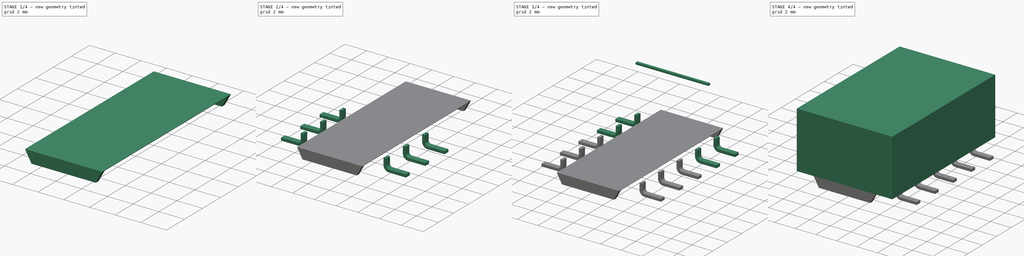
[diagram: build sequence overview — one tinted view per stage of 4, left to right]
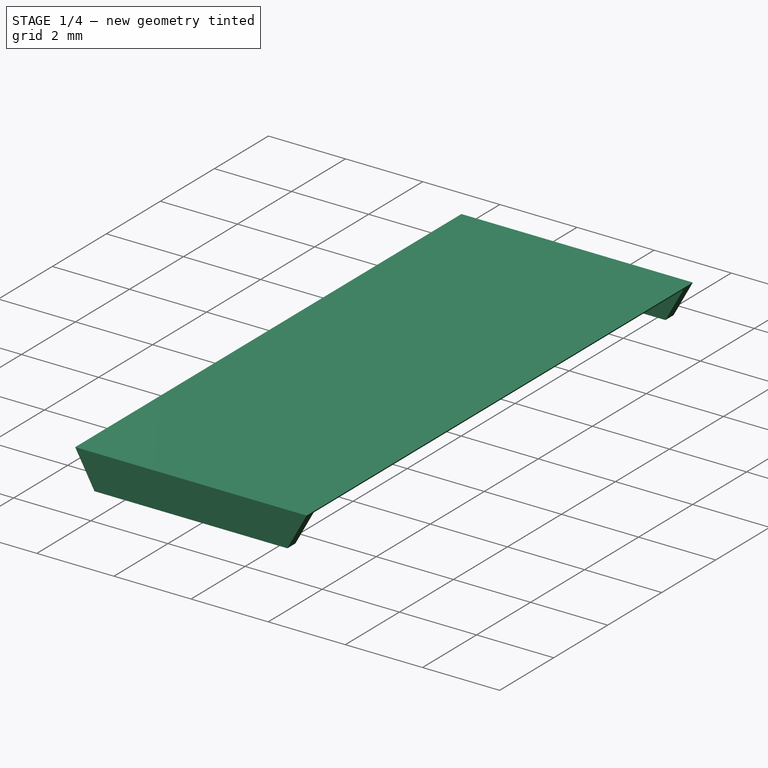
[diagram: stage 1 of 4 — iso view after this stage's code; geometry added in this stage tinted green]
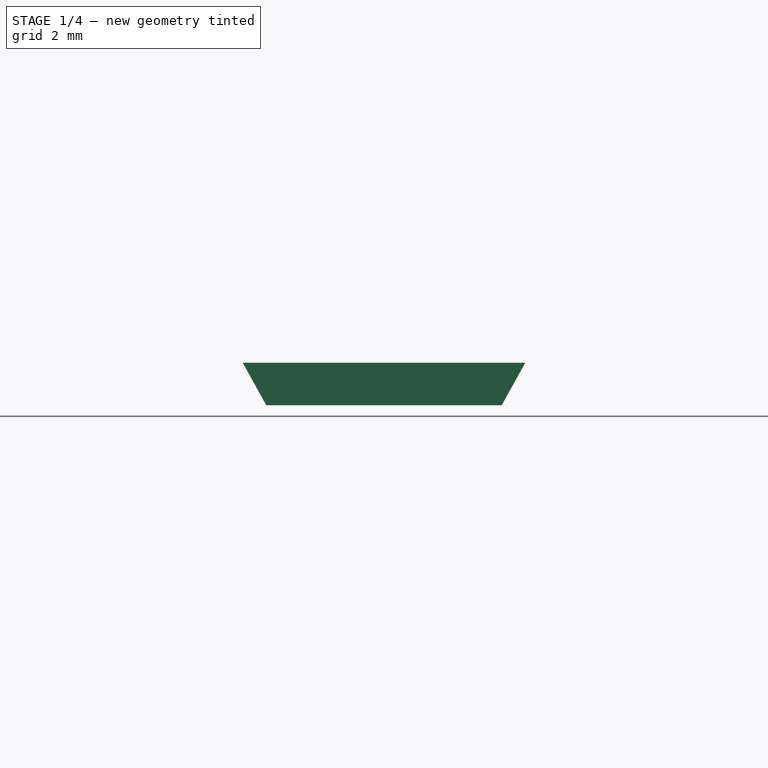
[diagram: stage 1 of 4 — front view after this stage's code; geometry added in this stage tinted green]
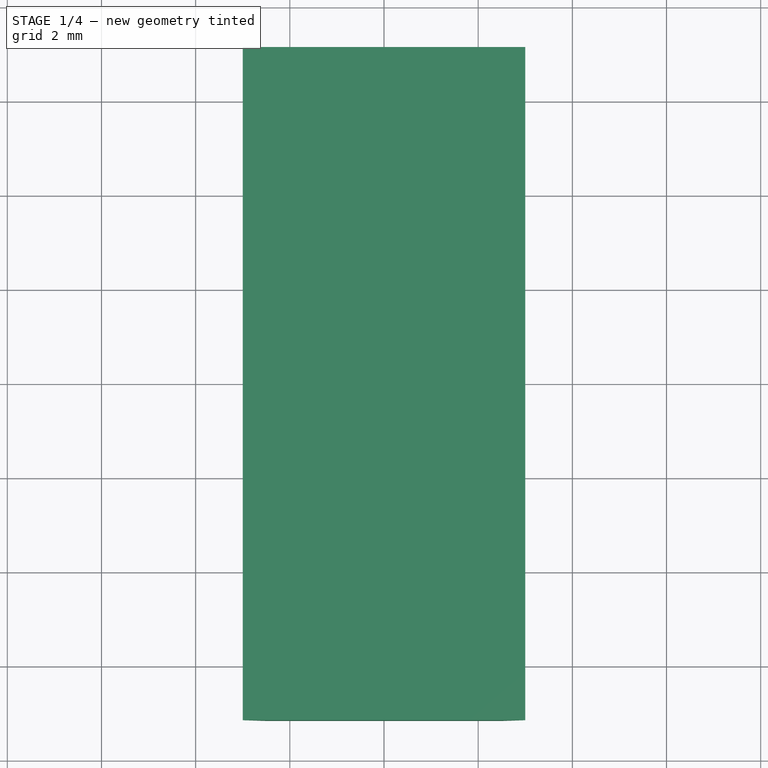
[diagram: stage 1 of 4 — top view after this stage's code; geometry added in this stage tinted green]
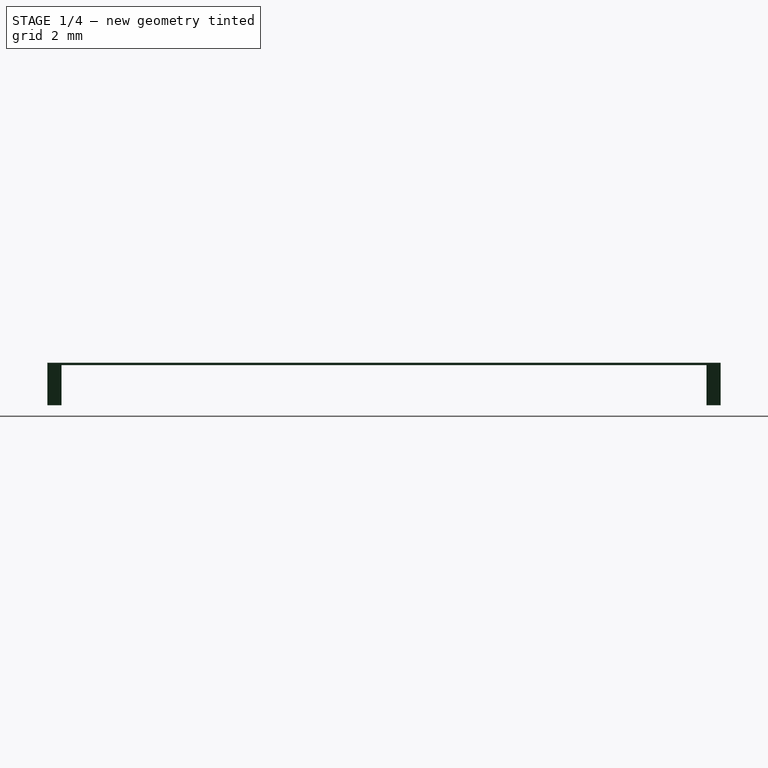
[diagram: stage 1 of 4 — right view after this stage's code; geometry added in this stage tinted green]
FCSTD DOCUMENT  (FreeCAD 0.16R6712 (Git))
Label: Relay_DPDT_Omron_G6H-2F
License: All rights reserved
LicenseURL: http://en.wikipedia.org/wiki/All_rights_reserved
objects: Sketcher::SketchObject×9, PartDesign::Pad×8, Part::Feature×3, App::DocumentObjectGroup×1, PartDesign::Pocket×1, Part::MultiFuse×1
note: 31 computed .brp shape members not serialized (recipe doc carries the construction recipe); baked Part::Feature solids carry a one-line shape summary decoded from their .brp

FEATURE [Sketcher::SketchObject] Sketch009
  Placement = pos=(-3.81,-7.15,0.9) rot=(1,0,0;1.5708rad)
  sketch-geometry (6):
    g0: LineSegment StartX=0.81 StartY=0 StartZ=0 EndX=1.31 EndY=-0.9 EndZ=0
    g1: LineSegment StartX=1.31 StartY=-0.9 StartZ=0 EndX=6.31 EndY=-0.9 EndZ=0
    g2: LineSegment StartX=6.31 StartY=-0.9 StartZ=0 EndX=6.81 EndY=0 EndZ=0
    g3: LineSegment StartX=6.81 StartY=0 StartZ=0 EndX=0.81 EndY=0 EndZ=0
    g4: GeomPoint [constr] X=3.81 Y=0 Z=0
    g5: LineSegment [constr] StartX=3.81 StartY=0 StartZ=0 EndX=3.81 EndY=-0.9 EndZ=0
  constraints (4):
    c: Coincident(g0,g1)
    c: Coincident(g0,g3)
    c: Coincident(g1,g2)
    c: Coincident(g2,g3)
FEATURE [PartDesign::Pad] Pad007
  Length = 14.3
  Length2 = 100
  Placement = pos=(-3.81,-7.15,0.9) rot=(1,0,0;1.5708rad)
  Reversed = true
  Sketch = -> Sketch009
  Type = 0
FEATURE [Part::Feature] FusionAxisZ1  label="Z"
  shape: bbox 0.8 x 0.8 x 14 mm, 8 faces (baked)
FEATURE [Part::Feature] FusionAxisY1  label="Y"
  Placement = pos=(0,0,0.05) rot=(-1,0,0;1.5708rad)
  shape: bbox 0.8 x 14 x 0.8 mm, 8 faces (baked)
FEATURE [Part::Feature] FusionAxisX1  label="X"
  Placement = pos=(0,-0.05,0) rot=(0,1,0;1.5708rad)
  shape: bbox 14 x 0.8 x 0.8 mm, 8 faces (baked)
FEATURE [App::DocumentObjectGroup] axis
  Group = -> [FusionAxisZ1,FusionAxisY1,FusionAxisX1]
FEATURE [Sketcher::SketchObject] Sketch010
  ExternalGeometry = -> [Pad007]
  Placement = pos=(-3.81,-7.15,0) rot=(1,0,0;3.14159rad)
  Support = -> Pad007 [Face2]
  sketch-geometry (4):
    g0: LineSegment StartX=0.81 StartY=-0.3 StartZ=0 EndX=6.81 EndY=-0.3 EndZ=0
    g1: LineSegment StartX=6.81 StartY=-0.3 StartZ=0 EndX=6.81 EndY=-14 EndZ=0
    g2: LineSegment StartX=6.81 StartY=-14 StartZ=0 EndX=0.81 EndY=-14 EndZ=0
    g3: LineSegment StartX=0.81 StartY=-14 StartZ=0 EndX=0.81 EndY=-0.3 EndZ=0
  constraints (12):
    c: Coincident(g0,g1)
    c: Coincident(g1,g2)
    c: Coincident(g2,g3)
    c: Coincident(g3,g0)
    c: Horizontal(g0)
    c: Horizontal(g2)
    c: Vertical(g1)
    c: Vertical(g3)
    c: DistanceX(g0,g-3) = 0.5
    c: DistanceX(g-4,g0) = 0.5
    c: DistanceY(g0,g-3) = 0.3
    c: DistanceY(g-3,g2) = 0.3
FEATURE [PartDesign::Pocket] Pocket
  Length = 0.85
  Placement = pos=(-3.81,-7.15,0.9) rot=(1,0,0;1.5708rad)
  Sketch = -> Sketch010
  Type = 0
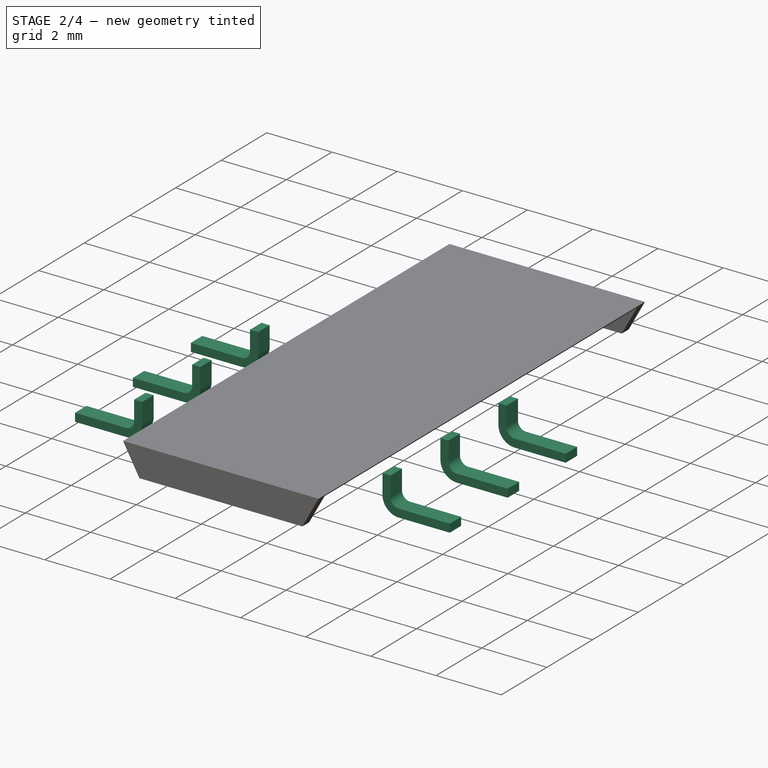
[diagram: stage 2 of 4 — iso view after this stage's code; geometry added in this stage tinted green]
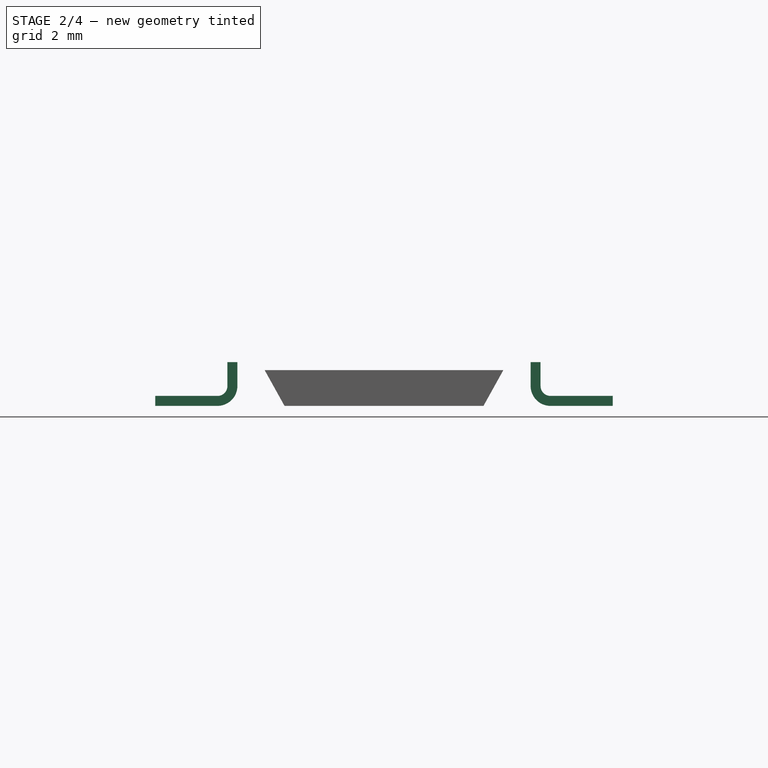
[diagram: stage 2 of 4 — front view after this stage's code; geometry added in this stage tinted green]
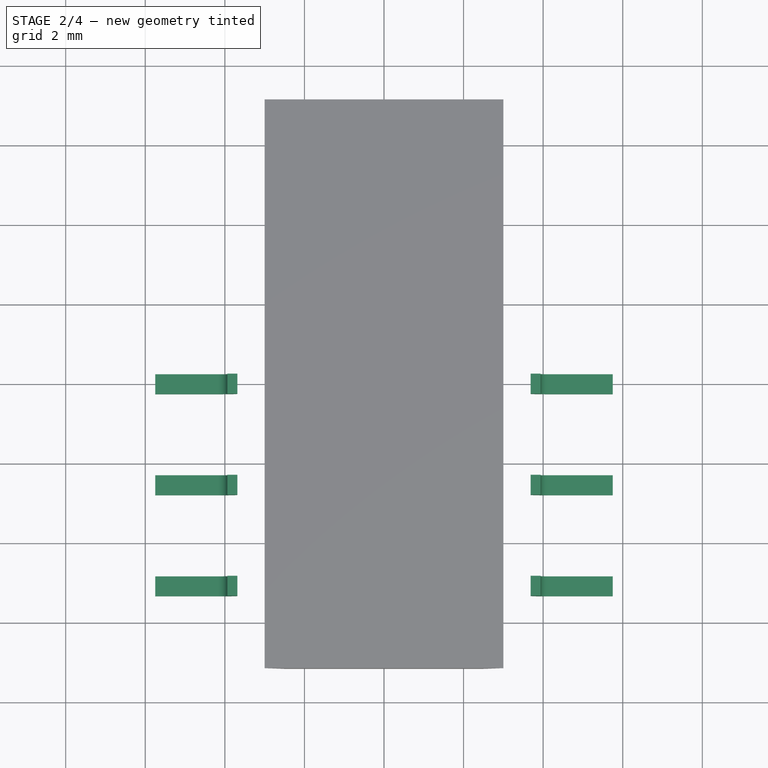
[diagram: stage 2 of 4 — top view after this stage's code; geometry added in this stage tinted green]
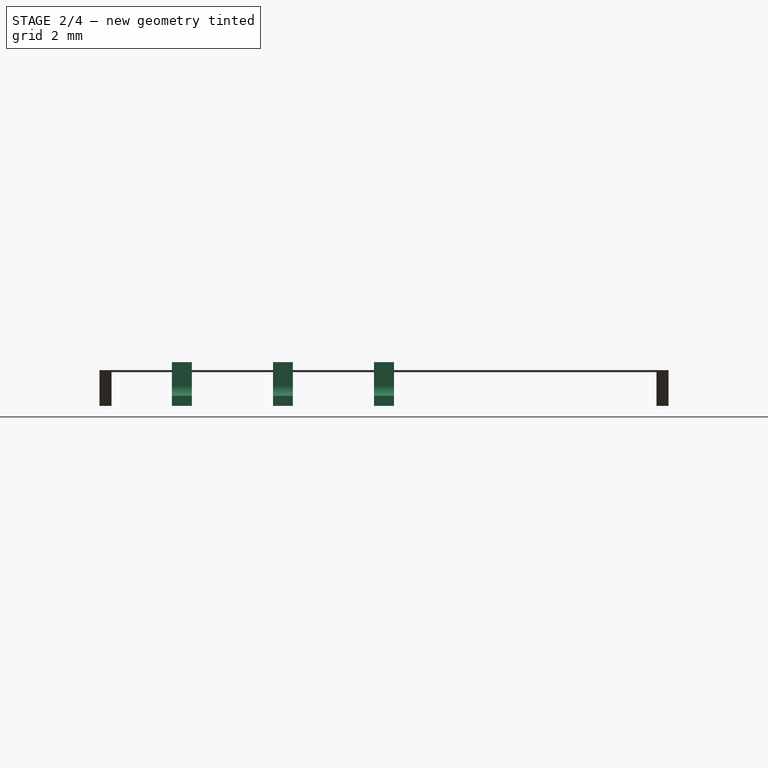
[diagram: stage 2 of 4 — right view after this stage's code; geometry added in this stage tinted green]
FEATURE [Sketcher::SketchObject] Sketch006
  Placement = pos=(-3.81,0,0) rot=(1,0,0;1.5708rad)
  expr: Constraints[26] = 6.2 - 5.1
  sketch-geometry (20):
    g0: LineSegment StartX=-1.94 StartY=0 StartZ=0 EndX=-0.375 EndY=0 EndZ=0
    g1: LineSegment StartX=-0.375 StartY=0.25 StartZ=0 EndX=-1.94 EndY=0.25 EndZ=0
    g2: LineSegment StartX=-1.94 StartY=0.25 StartZ=0 EndX=-1.94 EndY=0 EndZ=0
    g3: LineSegment StartX=-0.125 StartY=1.1 StartZ=0 EndX=0.125 EndY=1.1 EndZ=0
    g4: LineSegment StartX=0.125 StartY=1.1 StartZ=0 EndX=0.125 EndY=0.5 EndZ=0
    g5: LineSegment StartX=-0.125 StartY=0.5 StartZ=0 EndX=-0.125 EndY=1.1 EndZ=0
    g6: GeomPoint [constr] X=0 Y=1.1 Z=0
    g7: ArcOfCircle CenterX=-0.375 CenterY=0.5 CenterZ=0 NormalX=0 NormalY=0 NormalZ=1 Radius=0.25 StartAngle=4.71239 EndAngle=6.28319
    g8: LineSegment [constr] StartX=-0.375 StartY=0.25 StartZ=0 EndX=-0.375 EndY=0.5 EndZ=0
    g9: ArcOfCircle CenterX=-0.375 CenterY=0.5 CenterZ=0 NormalX=0 NormalY=0 NormalZ=1 Radius=0.5 StartAngle=4.71239 EndAngle=6.28319
    g10: LineSegment StartX=7.99961 StartY=0 StartZ=0 EndX=9.56 EndY=0 EndZ=0
    g11: LineSegment StartX=9.56 StartY=0 StartZ=0 EndX=9.56 EndY=0.25 EndZ=0
    g12: LineSegment StartX=9.56 StartY=0.25 StartZ=0 EndX=7.995 EndY=0.25 EndZ=0
    g13: LineSegment StartX=7.495 StartY=1.1 StartZ=0 EndX=7.745 EndY=1.1 EndZ=0
    g14: LineSegment StartX=7.745 StartY=1.1 StartZ=0 EndX=7.745 EndY=0.5 EndZ=0
    g15: LineSegment StartX=7.495 StartY=0.495385 StartZ=0 EndX=7.495 EndY=1.1 EndZ=0
    g16: LineSegment [constr] StartX=7.995 StartY=0.25 StartZ=0 EndX=7.995 EndY=0.5 EndZ=0
    g17: ArcOfCircle CenterX=7.995 CenterY=0.5 CenterZ=0 NormalX=0 NormalY=0 NormalZ=1 Radius=0.25 StartAngle=3.14159 EndAngle=4.71239
    g18: ArcOfCircle CenterX=7.995 CenterY=0.5 CenterZ=0 NormalX=0 NormalY=0 NormalZ=1 Radius=0.500021 StartAngle=3.15082 EndAngle=4.72162
    g19: LineSegment [constr] StartX=7.745 StartY=0.5 StartZ=0 EndX=7.995 EndY=0.5 EndZ=0
  constraints (56):
    c: Coincident(g1,g2)
    c: Coincident(g2,g0)
    c: Horizontal(g0)
    c: Horizontal(g1)
    c: Vertical(g2)
    c: PointOnObject(g0,g-1)
    c: Coincident(g3,g4)
    c: Coincident(g5,g3)
    c: Horizontal(g3)
    c: Vertical(g4)
    c: Vertical(g5)
    c: PointOnObject(g6,g3)
    c: PointOnObject(g6,g-2)
    c: Symmetric(g3,g3,g6)
    c: DistanceX(g3,g3) = 0.25
    c: Equal(g2,g3)
    c: Coincident(g7,g1)
    c: Coincident(g7,g5)
    c: Coincident(g8,g1)
    c: Coincident(g8,g7)
    c: Vertical(g8)
    c: Radius(g7) = 0.25
    c: Coincident(g9,g7)
    c: Coincident(g9,g4)
    c: Coincident(g9,g0)
    c: Equal(g4,g5)
    c: DistanceY(g-1,g3) = 1.1
    c: Coincident(g10,g11)
    c: Coincident(g11,g12)
    c: Horizontal(g10)
    c: Horizontal(g12)
    c: Vertical(g11)
    c: PointOnObject(g10,g-1)
    c: Equal(g2,g11)
    c: Coincident(g13,g14)
    c: Coincident(g15,g13)
    c: Horizontal(g13)
    c: Vertical(g14)
    c: Vertical(g15)
    c: Equal(g13,g11)
    c: Coincident(g16,g12)
    c: Vertical(g16)
    c: Coincident(g17,g16)
    c: Coincident(g17,g12)
    c: Coincident(g17,g14)
    c: Coincident(g18,g16)
    c: Coincident(g18,g10)
    c: Coincident(g18,g15)
    c: Equal(g17,g7)
    c: DistanceX(g3,g13) = 7.62
    c: DistanceX(g0,g10) = 11.5
    c: Equal(g12,g1)
    c: Coincident(g19,g14)
    c: Coincident(g19,g16)
    c: Horizontal(g19)
    c: DistanceY(g3,g13) = 0
FEATURE [PartDesign::Pad] Pad004
  Length = 0.5
  Length2 = 100
  Midplane = true
  Placement = pos=(-3.81,0,0) rot=(1,0,0;1.5708rad)
  Sketch = -> Sketch006
  Type = 0
FEATURE [Sketcher::SketchObject] Sketch007
  Placement = pos=(-3.81,-2.54,0) rot=(1,0,0;1.5708rad)
  expr: Constraints[26] = 6.2 - 5.1
  sketch-geometry (20):
    g0: LineSegment StartX=-1.94 StartY=0 StartZ=0 EndX=-0.375 EndY=0 EndZ=0
    g1: LineSegment StartX=-0.375 StartY=0.25 StartZ=0 EndX=-1.94 EndY=0.25 EndZ=0
    g2: LineSegment StartX=-1.94 StartY=0.25 StartZ=0 EndX=-1.94 EndY=0 EndZ=0
    g3: LineSegment StartX=-0.125 StartY=1.1 StartZ=0 EndX=0.125 EndY=1.1 EndZ=0
    g4: LineSegment StartX=0.125 StartY=1.1 StartZ=0 EndX=0.125 EndY=0.5 EndZ=0
    g5: LineSegment StartX=-0.125 StartY=0.5 StartZ=0 EndX=-0.125 EndY=1.1 EndZ=0
    g6: GeomPoint [constr] X=0 Y=1.1 Z=0
    g7: ArcOfCircle CenterX=-0.375 CenterY=0.5 CenterZ=0 NormalX=0 NormalY=0 NormalZ=1 Radius=0.25 StartAngle=4.71239 EndAngle=6.28319
    g8: LineSegment [constr] StartX=-0.375 StartY=0.25 StartZ=0 EndX=-0.375 EndY=0.5 EndZ=0
    g9: ArcOfCircle CenterX=-0.375 CenterY=0.5 CenterZ=0 NormalX=0 NormalY=0 NormalZ=1 Radius=0.5 StartAngle=4.71239 EndAngle=6.28319
    g10: LineSegment StartX=7.99961 StartY=0 StartZ=0 EndX=9.56 EndY=0 EndZ=0
    g11: LineSegment StartX=9.56 StartY=0 StartZ=0 EndX=9.56 EndY=0.25 EndZ=0
    g12: LineSegment StartX=9.56 StartY=0.25 StartZ=0 EndX=7.995 EndY=0.25 EndZ=0
    g13: LineSegment StartX=7.495 StartY=1.1 StartZ=0 EndX=7.745 EndY=1.1 EndZ=0
    g14: LineSegment StartX=7.745 StartY=1.1 StartZ=0 EndX=7.745 EndY=0.5 EndZ=0
    g15: LineSegment StartX=7.495 StartY=0.495385 StartZ=0 EndX=7.495 EndY=1.1 EndZ=0
    g16: LineSegment [constr] StartX=7.995 StartY=0.25 StartZ=0 EndX=7.995 EndY=0.5 EndZ=0
    g17: ArcOfCircle CenterX=7.995 CenterY=0.5 CenterZ=0 NormalX=0 NormalY=0 NormalZ=1 Radius=0.25 StartAngle=3.14159 EndAngle=4.71239
    g18: ArcOfCircle CenterX=7.995 CenterY=0.5 CenterZ=0 NormalX=0 NormalY=0 NormalZ=1 Radius=0.500021 StartAngle=3.15082 EndAngle=4.72162
    g19: LineSegment [constr] StartX=7.745 StartY=0.5 StartZ=0 EndX=7.995 EndY=0.5 EndZ=0
  constraints (56):
    c: Coincident(g1,g2)
    c: Coincident(g2,g0)
    c: Horizontal(g0)
    c: Horizontal(g1)
    c: Vertical(g2)
    c: PointOnObject(g0,g-1)
    c: Coincident(g3,g4)
    c: Coincident(g5,g3)
    c: Horizontal(g3)
    c: Vertical(g4)
    c: Vertical(g5)
    c: PointOnObject(g6,g3)
    c: PointOnObject(g6,g-2)
    c: Symmetric(g3,g3,g6)
    c: DistanceX(g3,g3) = 0.25
    c: Equal(g2,g3)
    c: Coincident(g7,g1)
    c: Coincident(g7,g5)
    c: Coincident(g8,g1)
    c: Coincident(g8,g7)
    c: Vertical(g8)
    c: Radius(g7) = 0.25
    c: Coincident(g9,g7)
    c: Coincident(g9,g4)
    c: Coincident(g9,g0)
    c: Equal(g4,g5)
    c: DistanceY(g-1,g3) = 1.1
    c: Coincident(g10,g11)
    c: Coincident(g11,g12)
    c: Horizontal(g10)
    c: Horizontal(g12)
    c: Vertical(g11)
    c: PointOnObject(g10,g-1)
    c: Equal(g2,g11)
    c: Coincident(g13,g14)
    c: Coincident(g15,g13)
    c: Horizontal(g13)
    c: Vertical(g14)
    c: Vertical(g15)
    c: Equal(g13,g11)
    c: Coincident(g16,g12)
    c: Vertical(g16)
    c: Coincident(g17,g16)
    c: Coincident(g17,g12)
    c: Coincident(g17,g14)
    c: Coincident(g18,g16)
    c: Coincident(g18,g10)
    c: Coincident(g18,g15)
    c: Equal(g17,g7)
    c: DistanceX(g3,g13) = 7.62
    c: DistanceX(g0,g10) = 11.5
    c: Equal(g12,g1)
    c: Coincident(g19,g14)
    c: Coincident(g19,g16)
    c: Horizontal(g19)
    c: DistanceY(g3,g13) = 0
FEATURE [PartDesign::Pad] Pad005
  Length = 0.5
  Length2 = 100
  Midplane = true
  Placement = pos=(-3.81,-2.54,0) rot=(1,0,0;1.5708rad)
  Sketch = -> Sketch007
  Type = 0
FEATURE [Sketcher::SketchObject] Sketch008
  Placement = pos=(-3.81,-5.08,0) rot=(1,0,0;1.5708rad)
  expr: Placement.Base.y = -2 * 2.54
  expr: Constraints[26] = 6.2 - 5.1
  sketch-geometry (20):
    g0: LineSegment StartX=-1.94 StartY=0 StartZ=0 EndX=-0.375 EndY=0 EndZ=0
    g1: LineSegment StartX=-0.375 StartY=0.25 StartZ=0 EndX=-1.94 EndY=0.25 EndZ=0
    g2: LineSegment StartX=-1.94 StartY=0.25 StartZ=0 EndX=-1.94 EndY=0 EndZ=0
    g3: LineSegment StartX=-0.125 StartY=1.1 StartZ=0 EndX=0.125 EndY=1.1 EndZ=0
    g4: LineSegment StartX=0.125 StartY=1.1 StartZ=0 EndX=0.125 EndY=0.5 EndZ=0
    g5: LineSegment StartX=-0.125 StartY=0.5 StartZ=0 EndX=-0.125 EndY=1.1 EndZ=0
    g6: GeomPoint [constr] X=0 Y=1.1 Z=0
    g7: ArcOfCircle CenterX=-0.375 CenterY=0.5 CenterZ=0 NormalX=0 NormalY=0 NormalZ=1 Radius=0.25 StartAngle=4.71239 EndAngle=6.28319
    g8: LineSegment [constr] StartX=-0.375 StartY=0.25 StartZ=0 EndX=-0.375 EndY=0.5 EndZ=0
    g9: ArcOfCircle CenterX=-0.375 CenterY=0.5 CenterZ=0 NormalX=0 NormalY=0 NormalZ=1 Radius=0.5 StartAngle=4.71239 EndAngle=6.28319
    g10: LineSegment StartX=7.99961 StartY=0 StartZ=0 EndX=9.56 EndY=0 EndZ=0
    g11: LineSegment StartX=9.56 StartY=0 StartZ=0 EndX=9.56 EndY=0.25 EndZ=0
    g12: LineSegment StartX=9.56 StartY=0.25 StartZ=0 EndX=7.995 EndY=0.25 EndZ=0
    g13: LineSegment StartX=7.495 StartY=1.1 StartZ=0 EndX=7.745 EndY=1.1 EndZ=0
    g14: LineSegment StartX=7.745 StartY=1.1 StartZ=0 EndX=7.745 EndY=0.5 EndZ=0
    g15: LineSegment StartX=7.495 StartY=0.495385 StartZ=0 EndX=7.495 EndY=1.1 EndZ=0
    g16: LineSegment [constr] StartX=7.995 StartY=0.25 StartZ=0 EndX=7.995 EndY=0.5 EndZ=0
    g17: ArcOfCircle CenterX=7.995 CenterY=0.5 CenterZ=0 NormalX=0 NormalY=0 NormalZ=1 Radius=0.25 StartAngle=3.14159 EndAngle=4.71239
    g18: ArcOfCircle CenterX=7.995 CenterY=0.5 CenterZ=0 NormalX=0 NormalY=0 NormalZ=1 Radius=0.500021 StartAngle=3.15082 EndAngle=4.72162
    g19: LineSegment [constr] StartX=7.745 StartY=0.5 StartZ=0 EndX=7.995 EndY=0.5 EndZ=0
  constraints (56):
    c: Coincident(g1,g2)
    c: Coincident(g2,g0)
    c: Horizontal(g0)
    c: Horizontal(g1)
    c: Vertical(g2)
    c: PointOnObject(g0,g-1)
    c: Coincident(g3,g4)
    c: Coincident(g5,g3)
    c: Horizontal(g3)
    c: Vertical(g4)
    c: Vertical(g5)
    c: PointOnObject(g6,g3)
    c: PointOnObject(g6,g-2)
    c: Symmetric(g3,g3,g6)
    c: DistanceX(g3,g3) = 0.25
    c: Equal(g2,g3)
    c: Coincident(g7,g1)
    c: Coincident(g7,g5)
    c: Coincident(g8,g1)
    c: Coincident(g8,g7)
    c: Vertical(g8)
    c: Radius(g7) = 0.25
    c: Coincident(g9,g7)
    c: Coincident(g9,g4)
    c: Coincident(g9,g0)
    c: Equal(g4,g5)
    c: DistanceY(g-1,g3) = 1.1
    c: Coincident(g10,g11)
    c: Coincident(g11,g12)
    c: Horizontal(g10)
    c: Horizontal(g12)
    c: Vertical(g11)
    c: PointOnObject(g10,g-1)
    c: Equal(g2,g11)
    c: Coincident(g13,g14)
    c: Coincident(g15,g13)
    c: Horizontal(g13)
    c: Vertical(g14)
    c: Vertical(g15)
    c: Equal(g13,g11)
    c: Coincident(g16,g12)
    c: Vertical(g16)
    c: Coincident(g17,g16)
    c: Coincident(g17,g12)
    c: Coincident(g17,g14)
    c: Coincident(g18,g16)
    c: Coincident(g18,g10)
    c: Coincident(g18,g15)
    c: Equal(g17,g7)
    c: DistanceX(g3,g13) = 7.62
    c: DistanceX(g0,g10) = 11.5
    c: Equal(g12,g1)
    c: Coincident(g19,g14)
    c: Coincident(g19,g16)
    c: Horizontal(g19)
    c: DistanceY(g3,g13) = 0
FEATURE [PartDesign::Pad] Pad006
  Length = 0.5
  Length2 = 100
  Midplane = true
  Placement = pos=(-3.81,-5.08,0) rot=(1,0,0;1.5708rad)
  Sketch = -> Sketch008
  Type = 0
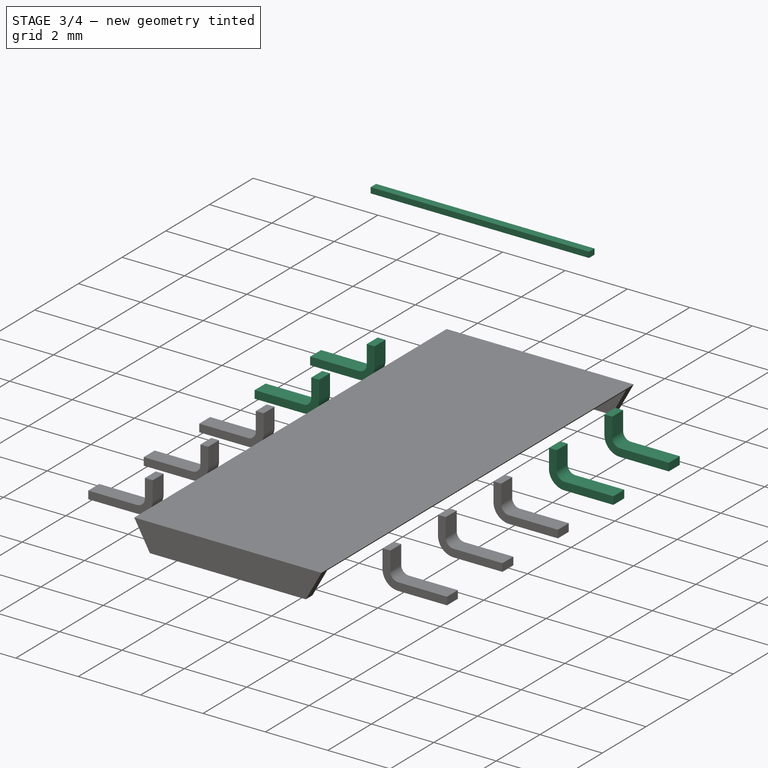
[diagram: stage 3 of 4 — iso view after this stage's code; geometry added in this stage tinted green]
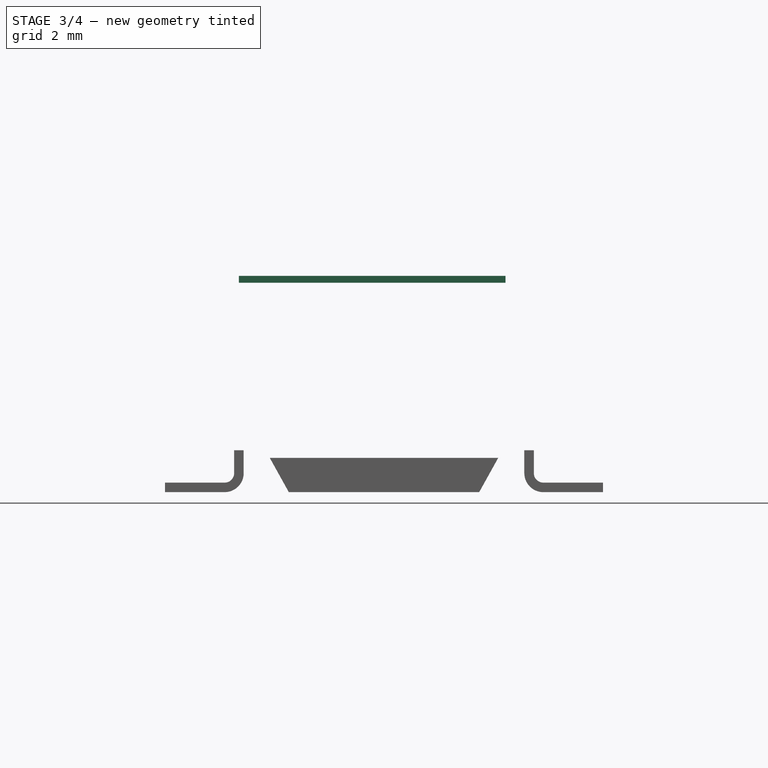
[diagram: stage 3 of 4 — front view after this stage's code; geometry added in this stage tinted green]
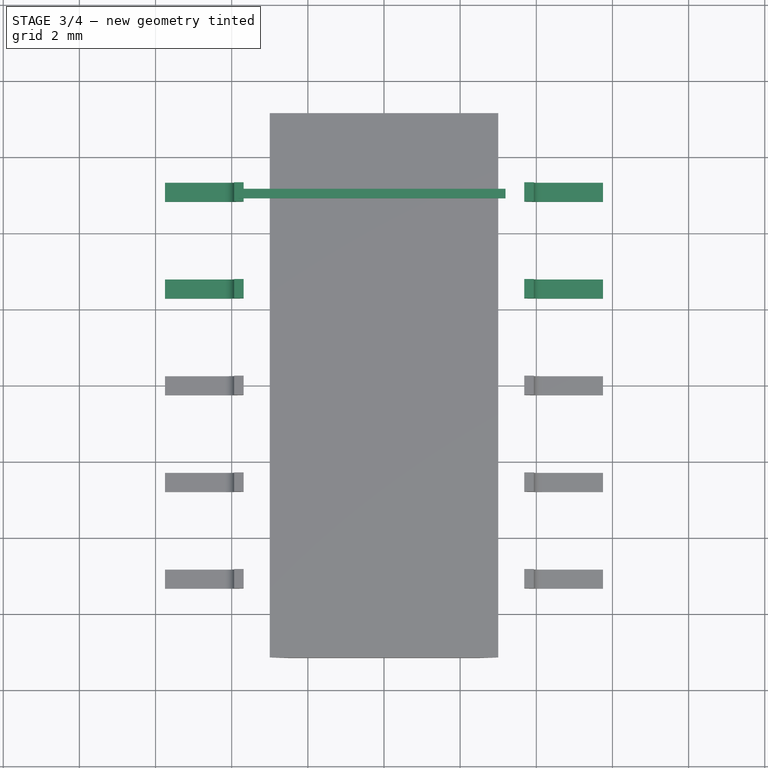
[diagram: stage 3 of 4 — top view after this stage's code; geometry added in this stage tinted green]
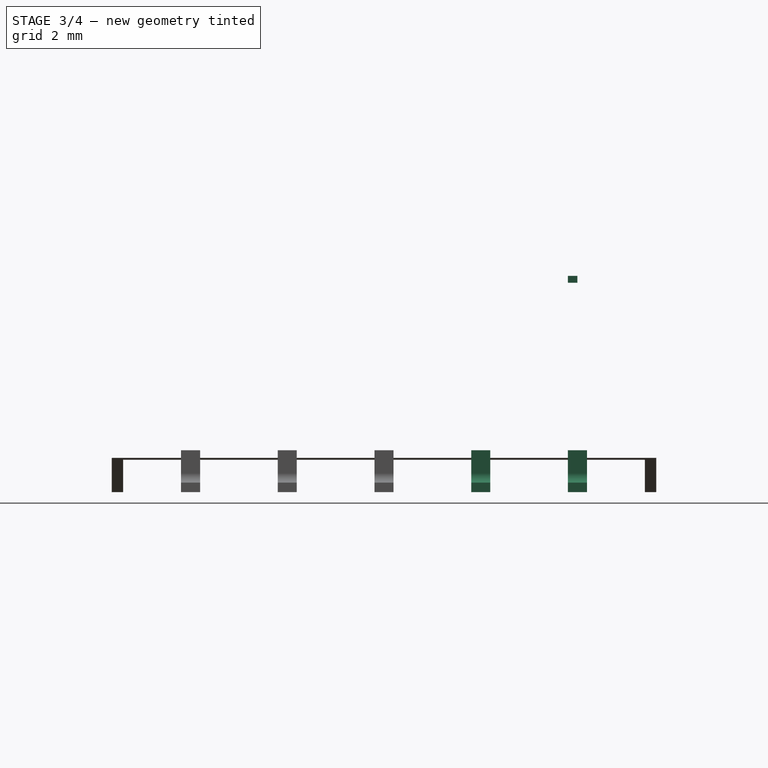
[diagram: stage 3 of 4 — right view after this stage's code; geometry added in this stage tinted green]
FEATURE [Sketcher::SketchObject] Sketch001
  Placement = pos=(-3.81,5.08,5.5) rot=(0,0,-1;1.5708rad)
  sketch-geometry (4):
    g0: LineSegment StartX=0 StartY=0 StartZ=0 EndX=0.25 EndY=0 EndZ=0
    g1: LineSegment StartX=0.25 StartY=0 StartZ=0 EndX=0.25 EndY=7 EndZ=0
    g2: LineSegment StartX=0.25 StartY=7 StartZ=0 EndX=0 EndY=7 EndZ=0
    g3: LineSegment StartX=0 StartY=7 StartZ=0 EndX=0 EndY=0 EndZ=0
  constraints (11):
    c: Coincident(g0,g1)
    c: Coincident(g1,g2)
    c: Coincident(g2,g3)
    c: Coincident(g3,g0)
    c: Horizontal(g0)
    c: Horizontal(g2)
    c: Vertical(g1)
    c: Vertical(g3)
    c: Coincident(g0,g-1)
    c: DistanceY(g1,g1) = 7
    c: DistanceX(g2,g2) = 0.25
FEATURE [PartDesign::Pad] Pad001
  Length = 0.18
  Length2 = 100
  Placement = pos=(-3.81,5.08,5.5) rot=(0,0,-1;1.5708rad)
  Sketch = -> Sketch001
  Type = 0
FEATURE [Sketcher::SketchObject] Sketch004
  Placement = pos=(-3.81,5.08,0) rot=(1,0,0;1.5708rad)
  expr: Constraints[26] = 6.2 - 5.1
  sketch-geometry (20):
    g0: LineSegment StartX=-1.94 StartY=0 StartZ=0 EndX=-0.375 EndY=0 EndZ=0
    g1: LineSegment StartX=-0.375 StartY=0.25 StartZ=0 EndX=-1.94 EndY=0.25 EndZ=0
    g2: LineSegment StartX=-1.94 StartY=0.25 StartZ=0 EndX=-1.94 EndY=0 EndZ=0
    g3: LineSegment StartX=-0.125 StartY=1.1 StartZ=0 EndX=0.125 EndY=1.1 EndZ=0
    g4: LineSegment StartX=0.125 StartY=1.1 StartZ=0 EndX=0.125 EndY=0.5 EndZ=0
    g5: LineSegment StartX=-0.125 StartY=0.5 StartZ=0 EndX=-0.125 EndY=1.1 EndZ=0
    g6: GeomPoint [constr] X=0 Y=1.1 Z=0
    g7: ArcOfCircle CenterX=-0.375 CenterY=0.5 CenterZ=0 NormalX=0 NormalY=0 NormalZ=1 Radius=0.25 StartAngle=4.71239 EndAngle=6.28319
    g8: LineSegment [constr] StartX=-0.375 StartY=0.25 StartZ=0 EndX=-0.375 EndY=0.5 EndZ=0
    g9: ArcOfCircle CenterX=-0.375 CenterY=0.5 CenterZ=0 NormalX=0 NormalY=0 NormalZ=1 Radius=0.5 StartAngle=4.71239 EndAngle=6.28319
    g10: LineSegment StartX=7.99961 StartY=0 StartZ=0 EndX=9.56 EndY=0 EndZ=0
    g11: LineSegment StartX=9.56 StartY=0 StartZ=0 EndX=9.56 EndY=0.25 EndZ=0
    g12: LineSegment StartX=9.56 StartY=0.25 StartZ=0 EndX=7.995 EndY=0.25 EndZ=0
    g13: LineSegment StartX=7.495 StartY=1.1 StartZ=0 EndX=7.745 EndY=1.1 EndZ=0
    g14: LineSegment StartX=7.745 StartY=1.1 StartZ=0 EndX=7.745 EndY=0.5 EndZ=0
    g15: LineSegment StartX=7.495 StartY=0.495385 StartZ=0 EndX=7.495 EndY=1.1 EndZ=0
    g16: LineSegment [constr] StartX=7.995 StartY=0.25 StartZ=0 EndX=7.995 EndY=0.5 EndZ=0
    g17: ArcOfCircle CenterX=7.995 CenterY=0.5 CenterZ=0 NormalX=0 NormalY=0 NormalZ=1 Radius=0.25 StartAngle=3.14159 EndAngle=4.71239
    g18: ArcOfCircle CenterX=7.995 CenterY=0.5 CenterZ=0 NormalX=0 NormalY=0 NormalZ=1 Radius=0.500021 StartAngle=3.15082 EndAngle=4.72162
    g19: LineSegment [constr] StartX=7.745 StartY=0.5 StartZ=0 EndX=7.995 EndY=0.5 EndZ=0
  constraints (56):
    c: Coincident(g1,g2)
    c: Coincident(g2,g0)
    c: Horizontal(g0)
    c: Horizontal(g1)
    c: Vertical(g2)
    c: PointOnObject(g0,g-1)
    c: Coincident(g3,g4)
    c: Coincident(g5,g3)
    c: Horizontal(g3)
    c: Vertical(g4)
    c: Vertical(g5)
    c: PointOnObject(g6,g3)
    c: PointOnObject(g6,g-2)
    c: Symmetric(g3,g3,g6)
    c: DistanceX(g3,g3) = 0.25
    c: Equal(g2,g3)
    c: Coincident(g7,g1)
    c: Coincident(g7,g5)
    c: Coincident(g8,g1)
    c: Coincident(g8,g7)
    c: Vertical(g8)
    c: Radius(g7) = 0.25
    c: Coincident(g9,g7)
    c: Coincident(g9,g4)
    c: Coincident(g9,g0)
    c: Equal(g4,g5)
    c: DistanceY(g-1,g3) = 1.1
    c: Coincident(g10,g11)
    c: Coincident(g11,g12)
    c: Horizontal(g10)
    c: Horizontal(g12)
    c: Vertical(g11)
    c: PointOnObject(g10,g-1)
    c: Equal(g2,g11)
    c: Coincident(g13,g14)
    c: Coincident(g15,g13)
    c: Horizontal(g13)
    c: Vertical(g14)
    c: Vertical(g15)
    c: Equal(g13,g11)
    c: Coincident(g16,g12)
    c: Vertical(g16)
    c: Coincident(g17,g16)
    c: Coincident(g17,g12)
    c: Coincident(g17,g14)
    c: Coincident(g18,g16)
    c: Coincident(g18,g10)
    c: Coincident(g18,g15)
    c: Equal(g17,g7)
    c: DistanceX(g3,g13) = 7.62
    c: DistanceX(g0,g10) = 11.5
    c: Equal(g12,g1)
    c: Coincident(g19,g14)
    c: Coincident(g19,g16)
    c: Horizontal(g19)
    c: DistanceY(g3,g13) = 0
FEATURE [PartDesign::Pad] Pad002
  Length = 0.5
  Length2 = 100
  Midplane = true
  Placement = pos=(-3.81,5.08,0) rot=(1,0,0;1.5708rad)
  Sketch = -> Sketch004
  Type = 0
FEATURE [Sketcher::SketchObject] Sketch005
  Placement = pos=(-3.81,2.54,0) rot=(1,0,0;1.5708rad)
  expr: Constraints[26] = 6.2 - 5.1
  sketch-geometry (20):
    g0: LineSegment StartX=-1.94 StartY=0 StartZ=0 EndX=-0.375 EndY=0 EndZ=0
    g1: LineSegment StartX=-0.375 StartY=0.25 StartZ=0 EndX=-1.94 EndY=0.25 EndZ=0
    g2: LineSegment StartX=-1.94 StartY=0.25 StartZ=0 EndX=-1.94 EndY=0 EndZ=0
    g3: LineSegment StartX=-0.125 StartY=1.1 StartZ=0 EndX=0.125 EndY=1.1 EndZ=0
    g4: LineSegment StartX=0.125 StartY=1.1 StartZ=0 EndX=0.125 EndY=0.5 EndZ=0
    g5: LineSegment StartX=-0.125 StartY=0.5 StartZ=0 EndX=-0.125 EndY=1.1 EndZ=0
    g6: GeomPoint [constr] X=0 Y=1.1 Z=0
    g7: ArcOfCircle CenterX=-0.375 CenterY=0.5 CenterZ=0 NormalX=0 NormalY=0 NormalZ=1 Radius=0.25 StartAngle=4.71239 EndAngle=6.28319
    g8: LineSegment [constr] StartX=-0.375 StartY=0.25 StartZ=0 EndX=-0.375 EndY=0.5 EndZ=0
    g9: ArcOfCircle CenterX=-0.375 CenterY=0.5 CenterZ=0 NormalX=0 NormalY=0 NormalZ=1 Radius=0.5 StartAngle=4.71239 EndAngle=6.28319
    g10: LineSegment StartX=7.99961 StartY=0 StartZ=0 EndX=9.56 EndY=0 EndZ=0
    g11: LineSegment StartX=9.56 StartY=0 StartZ=0 EndX=9.56 EndY=0.25 EndZ=0
    g12: LineSegment StartX=9.56 StartY=0.25 StartZ=0 EndX=7.995 EndY=0.25 EndZ=0
    g13: LineSegment StartX=7.495 StartY=1.1 StartZ=0 EndX=7.745 EndY=1.1 EndZ=0
    g14: LineSegment StartX=7.745 StartY=1.1 StartZ=0 EndX=7.745 EndY=0.5 EndZ=0
    g15: LineSegment StartX=7.495 StartY=0.495385 StartZ=0 EndX=7.495 EndY=1.1 EndZ=0
    g16: LineSegment [constr] StartX=7.995 StartY=0.25 StartZ=0 EndX=7.995 EndY=0.5 EndZ=0
    g17: ArcOfCircle CenterX=7.995 CenterY=0.5 CenterZ=0 NormalX=0 NormalY=0 NormalZ=1 Radius=0.25 StartAngle=3.14159 EndAngle=4.71239
    g18: ArcOfCircle CenterX=7.995 CenterY=0.5 CenterZ=0 NormalX=0 NormalY=0 NormalZ=1 Radius=0.500021 StartAngle=3.15082 EndAngle=4.72162
    g19: LineSegment [constr] StartX=7.745 StartY=0.5 StartZ=0 EndX=7.995 EndY=0.5 EndZ=0
  constraints (56):
    c: Coincident(g1,g2)
    c: Coincident(g2,g0)
    c: Horizontal(g0)
    c: Horizontal(g1)
    c: Vertical(g2)
    c: PointOnObject(g0,g-1)
    c: Coincident(g3,g4)
    c: Coincident(g5,g3)
    c: Horizontal(g3)
    c: Vertical(g4)
    c: Vertical(g5)
    c: PointOnObject(g6,g3)
    c: PointOnObject(g6,g-2)
    c: Symmetric(g3,g3,g6)
    c: DistanceX(g3,g3) = 0.25
    c: Equal(g2,g3)
    c: Coincident(g7,g1)
    c: Coincident(g7,g5)
    c: Coincident(g8,g1)
    c: Coincident(g8,g7)
    c: Vertical(g8)
    c: Radius(g7) = 0.25
    c: Coincident(g9,g7)
    c: Coincident(g9,g4)
    c: Coincident(g9,g0)
    c: Equal(g4,g5)
    c: DistanceY(g-1,g3) = 1.1
    c: Coincident(g10,g11)
    c: Coincident(g11,g12)
    c: Horizontal(g10)
    c: Horizontal(g12)
    c: Vertical(g11)
    c: PointOnObject(g10,g-1)
    c: Equal(g2,g11)
    c: Coincident(g13,g14)
    c: Coincident(g15,g13)
    c: Horizontal(g13)
    c: Vertical(g14)
    c: Vertical(g15)
    c: Equal(g13,g11)
    c: Coincident(g16,g12)
    c: Vertical(g16)
    c: Coincident(g17,g16)
    c: Coincident(g17,g12)
    c: Coincident(g17,g14)
    c: Coincident(g18,g16)
    c: Coincident(g18,g10)
    c: Coincident(g18,g15)
    c: Equal(g17,g7)
    c: DistanceX(g3,g13) = 7.62
    c: DistanceX(g0,g10) = 11.5
    c: Equal(g12,g1)
    c: Coincident(g19,g14)
    c: Coincident(g19,g16)
    c: Horizontal(g19)
    c: DistanceY(g3,g13) = 0
FEATURE [PartDesign::Pad] Pad003
  Length = 0.5
  Length2 = 100
  Midplane = true
  Placement = pos=(-3.81,2.54,0) rot=(1,0,0;1.5708rad)
  Sketch = -> Sketch005
  Type = 0
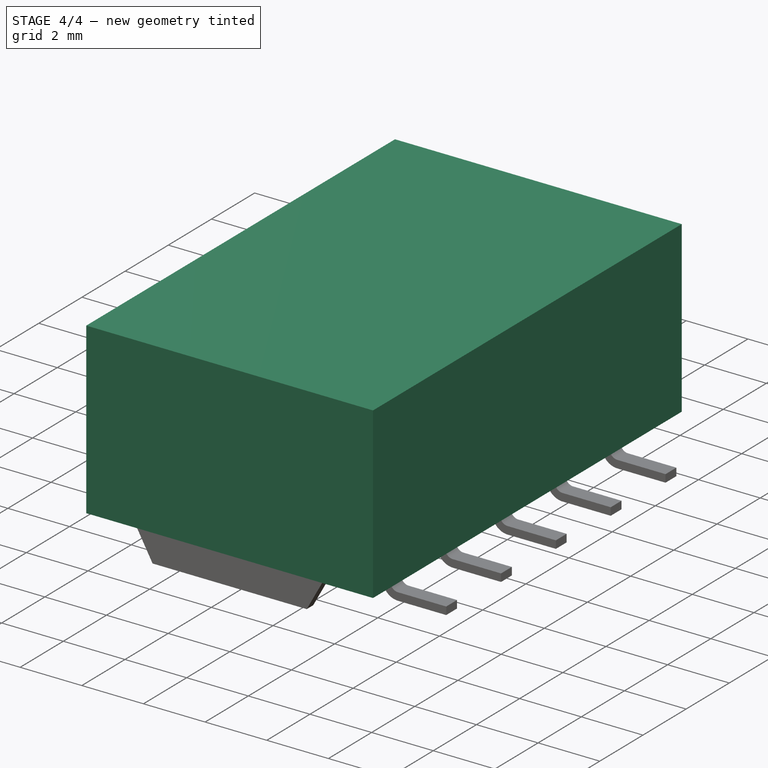
[diagram: stage 4 of 4 — iso view after this stage's code; geometry added in this stage tinted green]
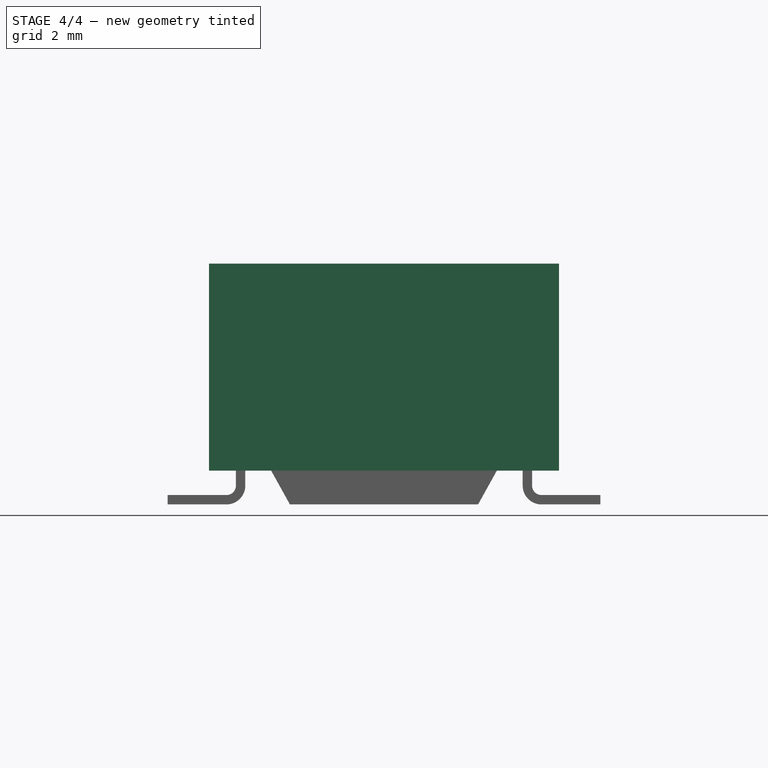
[diagram: stage 4 of 4 — front view after this stage's code; geometry added in this stage tinted green]
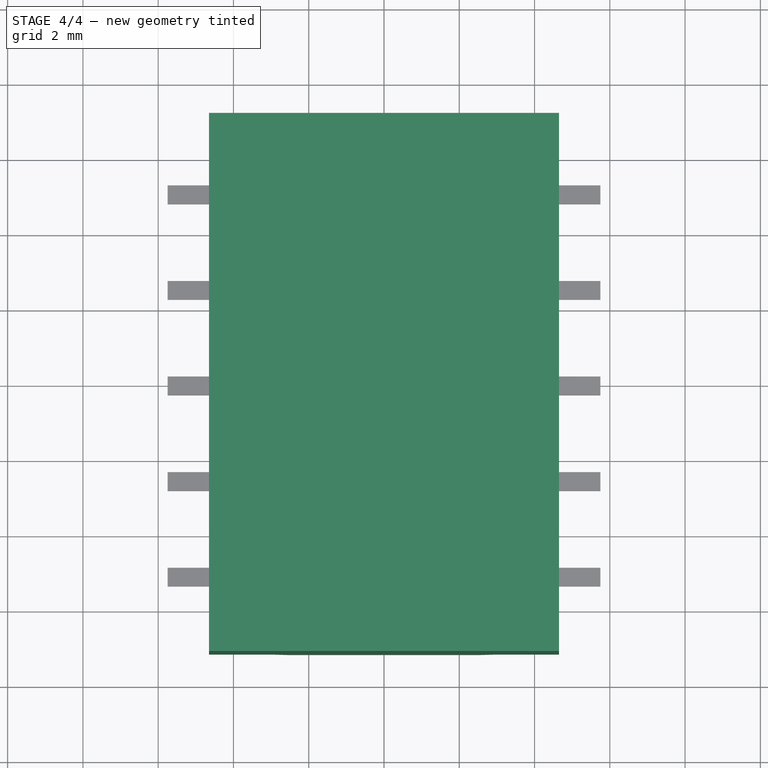
[diagram: stage 4 of 4 — top view after this stage's code; geometry added in this stage tinted green]
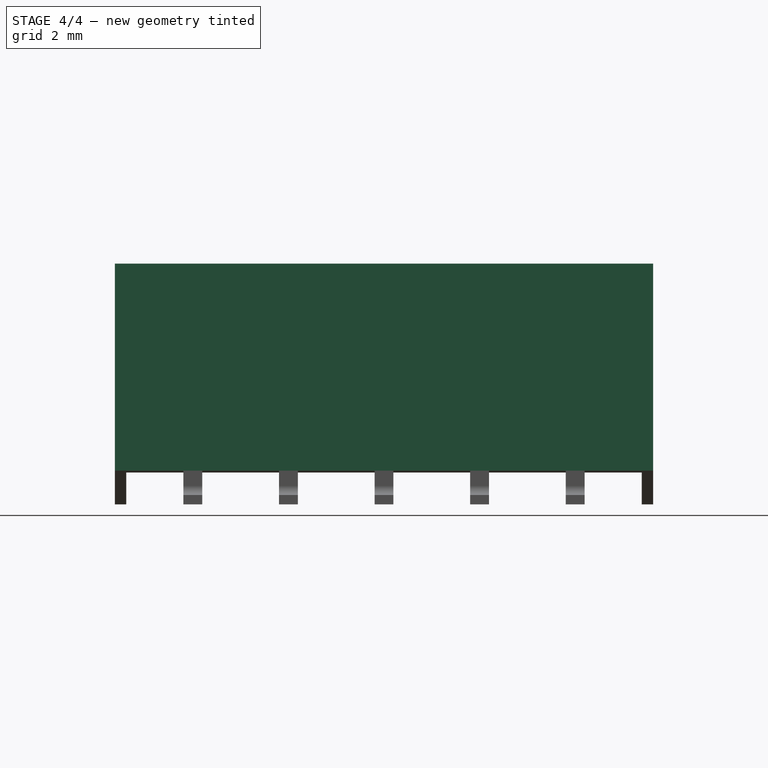
[diagram: stage 4 of 4 — right view after this stage's code; geometry added in this stage tinted green]
FEATURE [Sketcher::SketchObject] Sketch
  Placement = pos=(-3.81,5.08,0.9) rot=(0,0,-1;1.5708rad)
  expr: Constraints[10] = (14.3 - 4 * 2.54) / 2
  expr: Constraints[11] = (9.300000000000001 - 7.62) / 2
  sketch-geometry (4):
    g0: LineSegment StartX=-2.07 StartY=-0.84 StartZ=0 EndX=12.23 EndY=-0.84 EndZ=0
    g1: LineSegment StartX=12.23 StartY=-0.84 StartZ=0 EndX=12.23 EndY=8.46 EndZ=0
    g2: LineSegment StartX=12.23 StartY=8.46 StartZ=0 EndX=-2.07 EndY=8.46 EndZ=0
    g3: LineSegment StartX=-2.07 StartY=8.46 StartZ=0 EndX=-2.07 EndY=-0.84 EndZ=0
  constraints (12):
    c: Coincident(g0,g1)
    c: Coincident(g1,g2)
    c: Coincident(g2,g3)
    c: Coincident(g3,g0)
    c: Horizontal(g0)
    c: Horizontal(g2)
    c: Vertical(g1)
    c: Vertical(g3)
    c: DistanceX(g2,g2) = 14.3
    c: DistanceY(g1,g1) = 9.3
    c: DistanceX(g0,g-1) = 2.07
    c: DistanceY(g0,g-1) = 0.84
FEATURE [PartDesign::Pad] Pad
  Length = 5.5
  Length2 = 100
  Placement = pos=(-3.81,5.08,0.9) rot=(0,0,-1;1.5708rad)
  Sketch = -> Sketch
  Type = 0
FEATURE [Part::MultiFuse] Pad_mp_cp  label="Relay_DPDT_Omron_G6H-2F"
  Shapes = -> [Pad,Pad001,Pad002,Pad003,Pad004,Pad005,Pad006,Pocket]
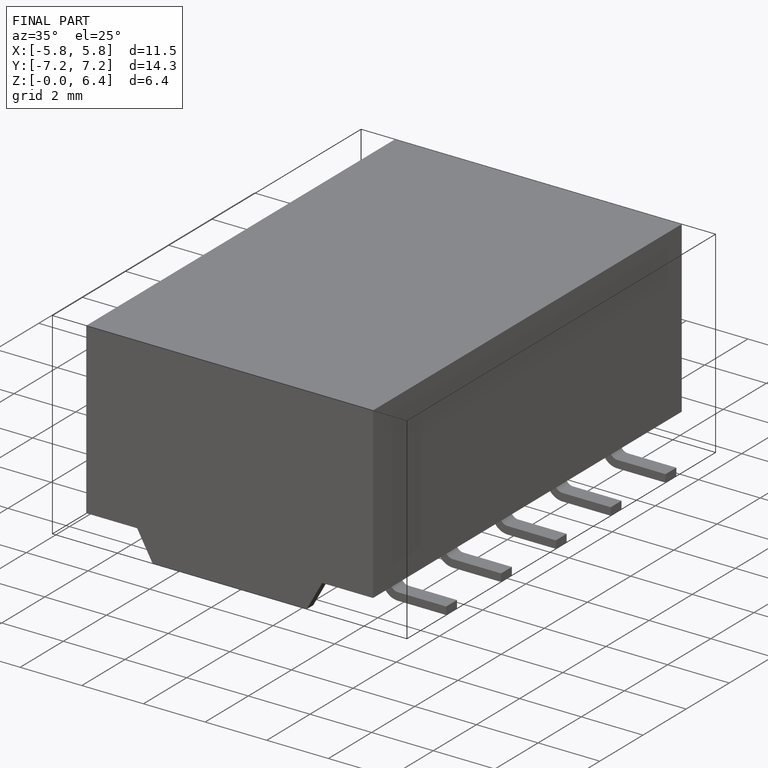
[diagram: finished part — iso view with bounding-box wireframe]
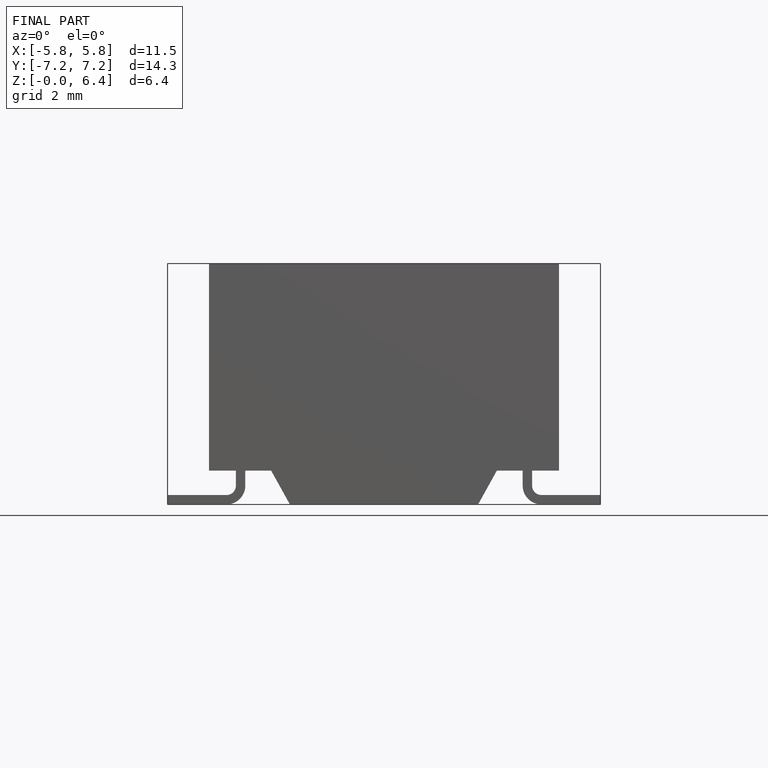
[diagram: finished part — front view with bounding-box wireframe]
